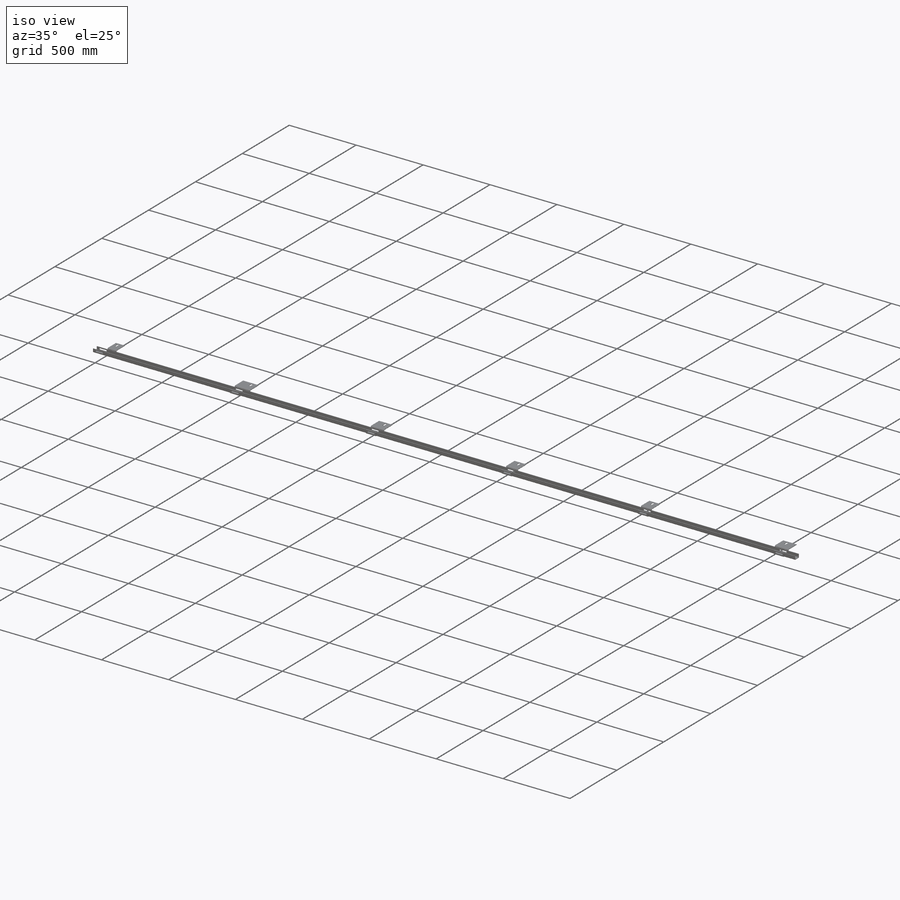
[diagram: iso view]
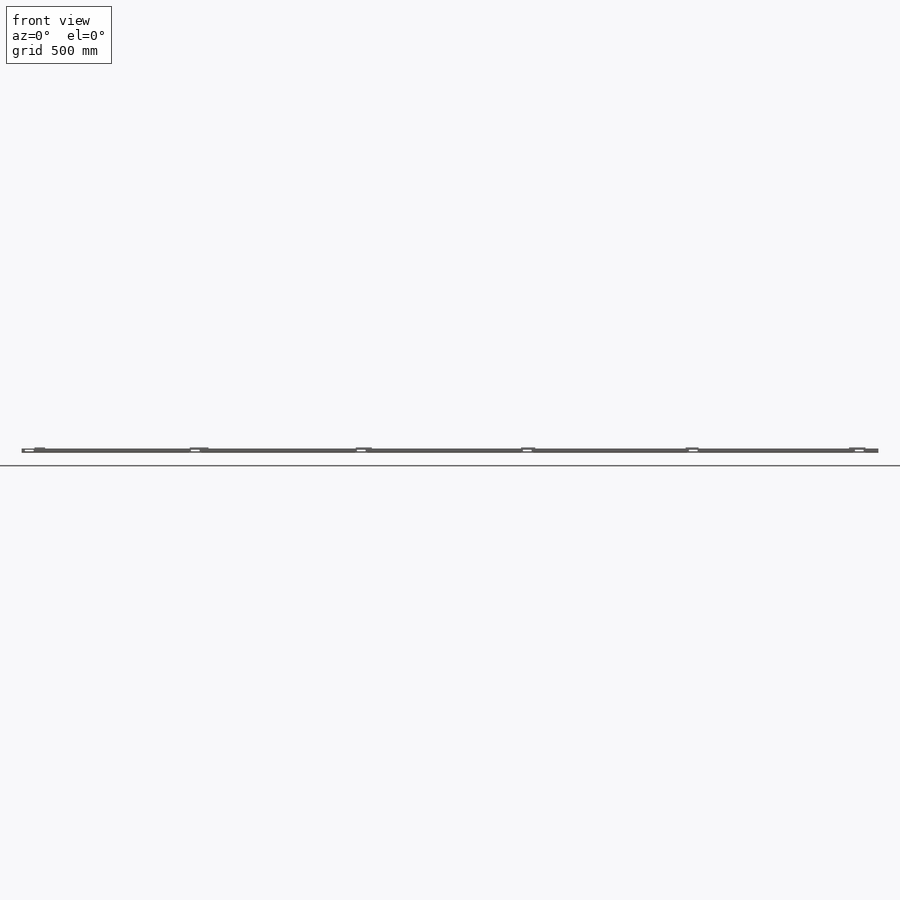
[diagram: front view]
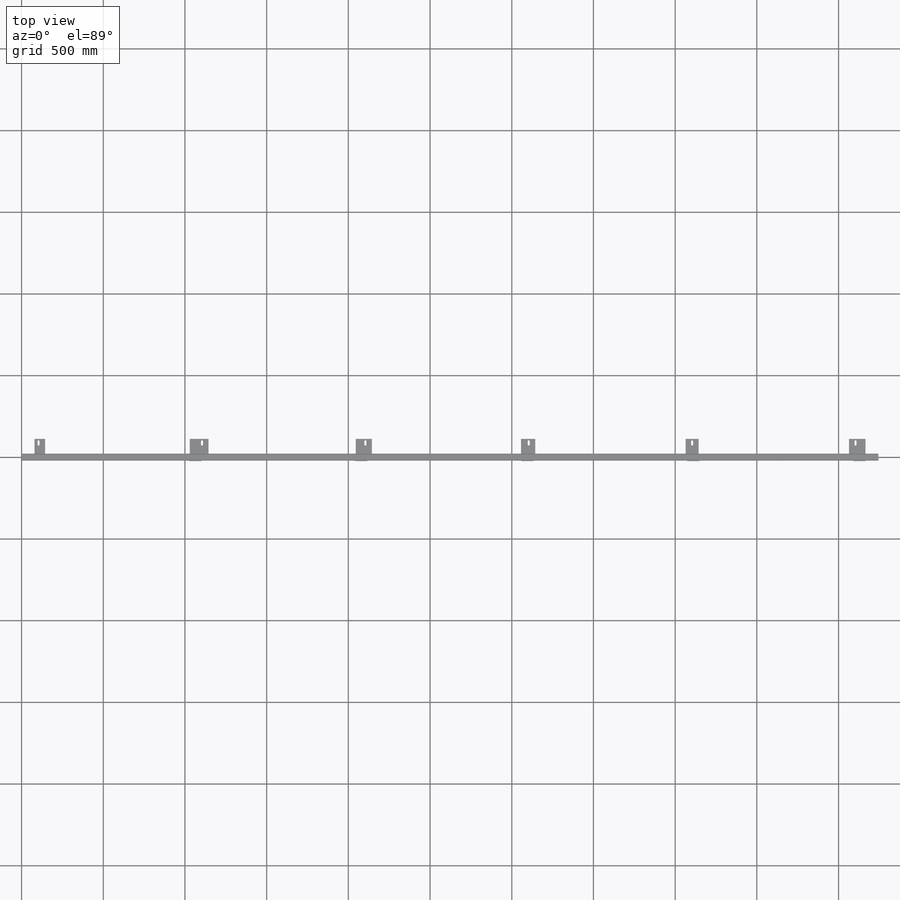
[diagram: top view]
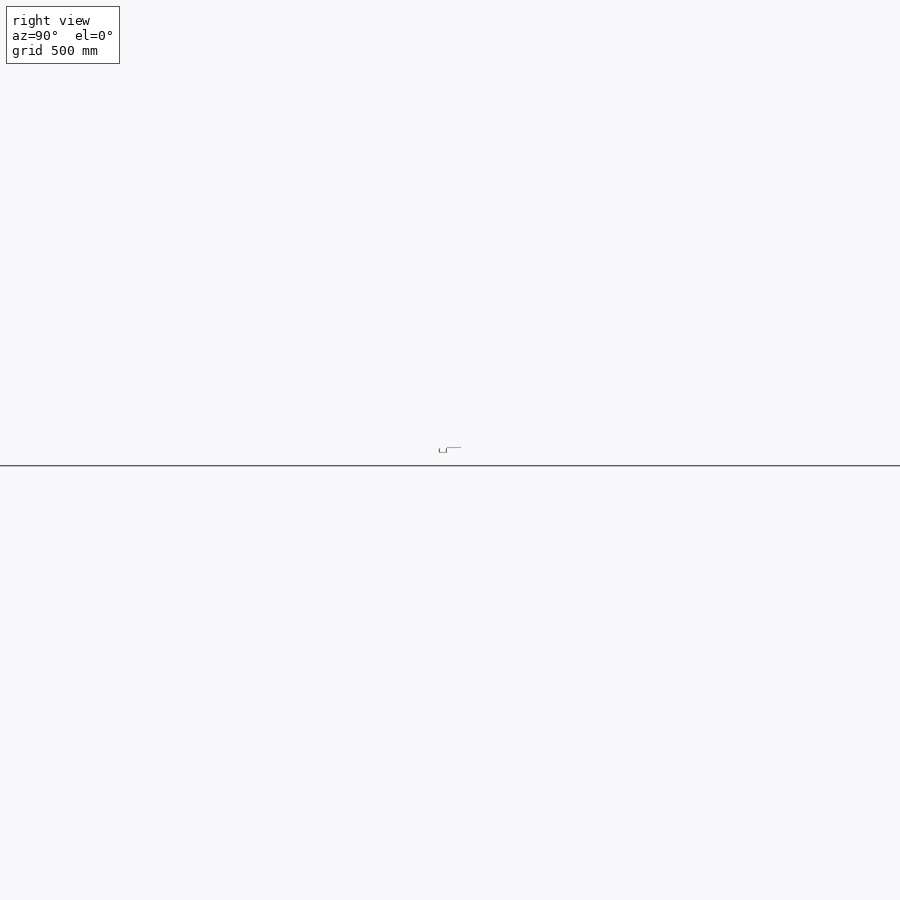
[diagram: right view]
SOLIDWORKS PART (.sldprt)
format: sldprt  version: not decoded by parser v0  size: 3,905,536 bytes
history: native  units: mm
features: sketch x130, sheet_metal_op x56, cut_extrude x13, extrude x8, mirror x2, pattern_linear x2, material x1 + 108 further entries (+26 scaffold rows collapsed; 10 parser-record rows omitted)
feature tree (356):
  scaffold x26  (default folders/planes/origin — collapsed)
  material  "1.0037 (S235JR)"
  "U guide lg 2244"
  "Patte de fixation allongé 3"
  "U guide de 2244 mm"
  "Patte de fixation 1"
  "Patte de fixation 2"
  "Patte de fixation 3"
  "Patte de fixation 4"
  "Patte de fixation 5"
  "Patte de fixation 6"
  "Plat de renfort"
  parser-record x10  (decoder bookkeeping rows leaked as tree rows — omitted from the tree; the rows remain in map.json)
  sketch  "Esquisse1"  dims[c1.D1=~6.334554mm c1.D2=~28.202983mm c2.D1=42.0mm c2.D2=3.0mm]
  extrude  "Boss.-Extru.1"  Depth=3000mm
  sketch  "Esquisse-Angle1"  dims[D1=0.0mm]
  sketch  "Esquisse-Plate1"  dims[D1=0.0mm]
  sketch  "Esquisse14"  dims[c1.D1=3.236mm c1.D4=90.0deg c1.D5=1.0 c1.D8=1.5mm c1.D9=1.5mm c2.D1=3.236mm c2.D2=500.0mm c2.D3=0.0mm c2.D6=0.5mm c2.D7=26.0mm]
  mirror  "Symétrie1"  Pli symétrique1=0
  sketch  "Esquisse49"  dims[D2=9.0mm D3=55.0mm D4=24.0mm D5=12.0mm D1=12.0mm]
  cut_extrude  "Enlèv. mat.-Extru.5"  [1 undecoded]
  sketch  "Esquisse59"  dims[c1.D1=~46.586115mm c1.D2=~3.145092mm c2.D1=30.528mm c2.D2=0.0mm c3.D1=30.528mm c3.D2=~53.722978mm c4.D1=2244.0mm]
  sheet_metal_op  "Tôle de base pliée1"
  extrude  "Tôle pliée sur arête2"  Depth=0 Pli d'arête3=0
  sketch  "Esquisse63"  dims[D1=3.236mm D2=500.0mm D3=0.0mm D6=10.0mm D7=26.0mm]
  mirror  "Symétrie2"  Pli symétrique3=0
  "Transformation de l'esquisse5"
  "Transformation de l'esquisse6"
  pattern_linear  "Répétition linéaire2"  Count1=6 Count2=1 Spacing1=1016mm Spacing2=50mm
  sketch  "Esquisse64"  dims[c1.D4=40.0mm c1.D3=34.0mm c1.D2=8.0mm c2.D3=34.0mm c2.D5=25.0mm c2.D1=104.0mm c2.D2=8.0mm c3.D3=29.5mm c3.D4=80.0mm]
  sheet_metal_op  "Tôle de base pliée2"
  extrude  "Tôle pliée sur arête3"  [1 undecoded]
  sketch  "Esquisse69"  dims[c1.Pli d'arête4=0.0 c1.D1=3.236mm c1.D4=90.0deg c1.D5=1.0 c1.D8=1.5mm c1.D9=1.5mm c2.D1=3.236mm c2.D2=500.0mm c2.D3=0.0mm c2.D6=10.0mm c2.D7=90.0mm]
  sketch  "Esquisse70"  dims[c1.D1=104.0mm c1.D2=12.0mm c1.D3=32.0mm c1.D4=25.0mm c1.D5=83.764mm c2.D1=40.0mm c2.D5=104.0mm c3.D1=104.0mm]
  cut_extrude  "Enlèv. mat.-Extru.6"  Depth=10mm
  sketch  "Esquisse72"  dims[c1.D1=1104.0mm c1.D2=75.0mm c1.D3=115.0mm c2.D1=1104.0mm c2.D2=75.0mm c2.D3=115.0mm c2.D4=8.0mm]
  sheet_metal_op  "Tôle de base pliée3"
  extrude  "Tôle pliée sur arête4"  [1 undecoded]
  sketch  "Esquisse77"  dims[c1.Pli d'arête5=0.0 c1.D1=3.236mm c1.D4=90.0deg c1.D5=1.0 c1.D8=1.5mm c1.D9=1.5mm c2.D1=3.236mm c2.D2=500.0mm c2.D3=0.0mm c2.D6=10.0mm c2.D7=90.0mm]
  sketch  "Esquisse78"
  cut_extrude  "Enlèv. mat.-Extru.7"  Depth=3mm
  sketch  "Esquisse79"  dims[c1.D1=1104.0mm c1.D2=12.0mm c1.D3=32.0mm c1.D4=25.0mm c2.D1=1104.0mm]
  cut_extrude  "Enlèv. mat.-Extru.8"  Depth=3mm
  sketch  "Esquisse80"  dims[c1.D1=2104.0mm c1.D2=43.5mm c1.D3=~44.187438mm c2.D2=59.0mm c2.D3=99.0mm c2.D1=2104.0mm c3.D2=55.0mm c3.D3=95.0mm c3.D4=8.0mm]
  sheet_metal_op  "Tôle de base pliée4"
  extrude  "Tôle pliée sur arête5"  [1 undecoded]
  sketch  "Esquisse85"  dims[c1.Pli d'arête6=0.0 c1.D1=3.236mm c1.D4=90.0deg c1.D5=1.0 c1.D8=1.5mm c1.D9=1.5mm c2.D1=3.236mm c2.D2=500.0mm c2.D3=0.0mm c2.D6=10.0mm c2.D7=90.0mm]
  sketch  "Esquisse86"
  cut_extrude  "Enlèv. mat.-Extru.9"  Depth=3mm
  sketch  "Esquisse87"  dims[c1.D1=2104.0mm c1.D2=12.0mm c1.D3=32.0mm c1.D4=25.0mm c2.D1=2104.0mm]
  cut_extrude  "Enlèv. mat.-Extru.10"  Depth=3mm
  sketch  "Esquisse88"  dims[c1.D1=3104.0mm c1.D2=47.5mm c1.D3=40.0mm c1.D4=8.0mm c2.D1=3104.0mm c2.D2=47.5mm c2.D3=40.0mm c2.D4=8.0mm]
  sheet_metal_op  "Tôle de base pliée6"
  extrude  "Tôle pliée sur arête7"  [1 undecoded]
  sketch  "Esquisse98"  dims[c1.Pli d'arête8=0.0 c1.D1=3.236mm c1.D4=90.0deg c1.D5=1.0 c1.D8=1.5mm c1.D9=1.5mm c2.D1=3.236mm c2.D2=500.0mm c2.D3=0.0mm c2.D6=10.0mm c2.D7=90.0mm]
  sketch  "Esquisse99"
  cut_extrude  "Enlèv. mat.-Extru.11"  Depth=3mm
  sketch  "Esquisse100"  dims[c1.D1=3104.0mm c1.D2=12.0mm c1.D3=32.0mm c1.D4=25.0mm c2.D1=3104.0mm]
  cut_extrude  "Enlèv. mat.-Extru.12"  Depth=3mm
  sketch  "Esquisse101"  dims[c1.D1=4104.0mm c1.D2=20.5mm c1.D3=40.0mm c1.D4=40.0mm c1.D5=34.0mm c2.D2=80.0mm c2.D6=8.0mm c2.D1=4104.0mm c3.D2=40.0mm c3.D3=40.0mm c4.D2=8.0mm]
  sheet_metal_op  "Tôle de base pliée7"
  sketch  "Esquisse104"
  cut_extrude  "Enlèv. mat.-Extru.13"  Depth=3mm
  extrude  "Tôle pliée sur arête8"  [1 undecoded]
  sketch  "Esquisse107"  dims[c1.Pli d'arête9=0.0 c1.D1=3.236mm c1.D4=90.0deg c1.D5=1.0 c1.D8=1.5mm c1.D9=1.5mm c2.D1=3.236mm c2.D2=500.0mm c2.D3=0.0mm c2.D6=10.0mm c2.D7=90.0mm]
  sketch  "Esquisse108"  dims[c1.D1=4104.0mm c1.D2=12.0mm c1.D3=32.0mm c1.D4=25.0mm c2.D1=4104.0mm]
  cut_extrude  "Enlèv. mat.-Extru.14"  Depth=3mm
  sketch  "Esquisse109"  dims[c1.D1=5104.0mm c1.D2=40.0mm c1.D3=61.0mm c1.D5=34.0mm c2.D1=5104.0mm c2.D2=40.0mm c2.D3=61.0mm c2.D4=8.0mm]
  sheet_metal_op  "Tôle de base pliée8"
  sketch  "Esquisse112"
  cut_extrude  "Enlèv. mat.-Extru.15"  Depth=3mm
  extrude  "Tôle pliée sur arête9"  [1 undecoded]
  sketch  "Esquisse115"  dims[c1.Pli d'arête10=0.0 c1.D1=3.236mm c1.D4=90.0deg c1.D5=1.0 c1.D8=1.5mm c1.D9=1.5mm c2.D1=3.236mm c2.D2=500.0mm c2.D3=0.0mm c2.D6=10.0mm c2.D7=90.0mm]
  sketch  "Esquisse116"  dims[c1.D1=5104.0mm c1.D2=12.0mm c1.D3=32.0mm c1.D4=25.0mm c2.D1=5104.0mm]
  cut_extrude  "Enlèv. mat.-Extru.16"  Depth=3mm
  sketch  "Esquisse117"  dims[c1.D2=75.0mm c1.D3=25.0mm c1.D4=1063.0mm c1.D5=37.5mm c2.D3=1001.5mm c2.D4=1076.5mm c3.D3=1001.5mm c3.D1=37.5mm c3.D2=37.5mm c4.D1=25.0mm c4.D2=25.0mm]
  sheet_metal_op  "Tôle de base pliée9"
  sketch  "Esquisse120"
  cut_extrude  "Enlèv. mat.-Extru.17"  Depth=3mm
  pattern_linear  "Répétition linéaire4"  Count1=5 Count2=1 Spacing1=1016mm Spacing2=10mm
  sketch  "Lignes de pliage3"
  sketch  "Cube de visualisation3"
  sheet_metal_op  "Tôlerie3"
  "Etat déplié3"
  sketch  "Lignes de pliage4"
  sketch  "Cube de visualisation4"
  "Transformation de l'esquisse2"
  sheet_metal_op  "Tôlerie4"
  "Etat déplié3"
  sketch  "Lignes de pliage4"
  sketch  "Cube de visualisation4"
  "Transformation de l'esquisse2"
  sheet_metal_op  "Tôlerie5"
  "Etat déplié3"
  sketch  "Lignes de pliage4"
  sketch  "Cube de visualisation4"
  "Transformation de l'esquisse2"
  sheet_metal_op  "Tôlerie134"
  "Etat déplié3"
  sketch  "Lignes de pliage4"
  sketch  "Cube de visualisation4"
  "Transformation de l'esquisse2"
  sheet_metal_op  "Tôlerie138"
  "Etat déplié142"
  sketch  "Lignes de pliage6"
  sketch  "Cube de visualisation6"
  "Transformation de l'esquisse4"
  sheet_metal_op  "Tôlerie139"
  "Etat déplié142"
  sketch  "Lignes de pliage6"
  sketch  "Cube de visualisation6"
  "Transformation de l'esquisse4"
  sheet_metal_op  "Tôlerie140"
  "Etat déplié3"
  sketch  "Lignes de pliage4"
  sketch  "Cube de visualisation4"
  "Transformation de l'esquisse2"
  sheet_metal_op  "Tôlerie141"
  "U de 2244 mm"
  sketch  "Lignes de pliage6"
  sketch  "Cube de visualisation6"
  "Transformation de l'esquisse4"
  sheet_metal_op  "Tôlerie142"
  "Etat déplié142"
  sketch  "Lignes de pliage7"
  sketch  "Cube de visualisation7"
  "Transformation de l'esquisse7"
  sheet_metal_op  "Tôlerie143"
  "Etat déplié142"
  sketch  "Lignes de pliage6"
  sketch  "Cube de visualisation6"
  "Transformation de l'esquisse4"
  sheet_metal_op  "Tôlerie144"
  "Etat déplié144"
  sketch  "Lignes de pliage8"
  sketch  "Cube de visualisation8"
  "Transformation de l'esquisse8"
  sheet_metal_op  "Tôlerie145"
  "Etat déplié144"
  sketch  "Lignes de pliage8"
  sketch  "Cube de visualisation8"
  "Transformation de l'esquisse8"
  sheet_metal_op  "Tôlerie146"
  "Etat déplié144"
  sketch  "Lignes de pliage8"
  sketch  "Cube de visualisation8"
  "Transformation de l'esquisse8"
  sheet_metal_op  "Tôlerie147"
  "Etat déplié147"
  sketch  "Lignes de pliage9"
  sketch  "Cube de visualisation9"
  "Transformation de l'esquisse9"
  sheet_metal_op  "Tôlerie148"
  "Etat déplié147"
  sketch  "Lignes de pliage9"
  sketch  "Cube de visualisation9"
  "Transformation de l'esquisse9"
  sheet_metal_op  "Tôlerie149"
  "Etat déplié147"
  sketch  "Lignes de pliage9"
  sketch  "Cube de visualisation9"
  "Transformation de l'esquisse9"
  sheet_metal_op  "Tôlerie150"
  "Etat déplié147"
  sketch  "Lignes de pliage9"
  sketch  "Cube de visualisation9"
  "Transformation de l'esquisse9"
  sheet_metal_op  "Tôlerie151"
  "Etat déplié151"
  sketch  "Lignes de pliage10"
  sketch  "Cube de visualisation10"
  "Transformation de l'esquisse10"
  sheet_metal_op  "Tôlerie152"
  "Etat déplié151"
  sketch  "Lignes de pliage10"
  sketch  "Cube de visualisation10"
  "Transformation de l'esquisse10"
  sheet_metal_op  "Tôlerie153"
  "Etat déplié151"
  sketch  "Lignes de pliage10"
  sketch  "Cube de visualisation10"
  "Transformation de l'esquisse10"
  sheet_metal_op  "Tôlerie154"
  "Etat déplié151"
  sketch  "Lignes de pliage10"
  sketch  "Cube de visualisation10"
  "Transformation de l'esquisse10"
  sheet_metal_op  "Tôlerie157"
  "Etat déplié157"
  sketch  "Lignes de pliage12"
  sketch  "Cube de visualisation12"
  "Transformation de l'esquisse12"
  sheet_metal_op  "Tôlerie158"
  "Etat déplié157"
  sketch  "Lignes de pliage12"
  sketch  "Cube de visualisation12"
  "Transformation de l'esquisse12"
  sheet_metal_op  "Tôlerie159"
  "Etat déplié157"
  sketch  "Lignes de pliage12"
  sketch  "Cube de visualisation12"
  "Transformation de l'esquisse12"
  sheet_metal_op  "Tôlerie160"
  "Etat déplié157"
  sketch  "Lignes de pliage12"
  sketch  "Cube de visualisation12"
  "Transformation de l'esquisse12"
  sheet_metal_op  "Tôlerie161"
  "Etat déplié161"
  sketch  "Lignes de pliage13"
  sketch  "Cube de visualisation13"
  "Transformation de l'esquisse13"
  sheet_metal_op  "Tôlerie162"
  "Etat déplié161"
  sketch  "Lignes de pliage13"
  sketch  "Cube de visualisation13"
  "Transformation de l'esquisse13"
  sheet_metal_op  "Tôlerie163"
  "Etat déplié161"
  sketch  "Lignes de pliage13"
  sketch  "Cube de visualisation13"
  "Transformation de l'esquisse13"
  sheet_metal_op  "Tôlerie164"
  "Etat déplié161"
  sketch  "Lignes de pliage13"
  sketch  "Cube de visualisation13"
  "Transformation de l'esquisse13"
  sheet_metal_op  "Tôlerie165"
  "Etat déplié165"
  sketch  "Lignes de pliage14"
  sketch  "Cube de visualisation14"
  "Transformation de l'esquisse14"
  sheet_metal_op  "Tôlerie166"
  "Etat déplié165"
  sketch  "Lignes de pliage14"
  sketch  "Cube de visualisation14"
  "Transformation de l'esquisse14"
  sheet_metal_op  "Tôlerie167"
  "Etat déplié165"
  sketch  "Lignes de pliage14"
  sketch  "Cube de visualisation14"
  "Transformation de l'esquisse14"
  sheet_metal_op  "Tôlerie168"
  "Etat déplié165"
  sketch  "Lignes de pliage14"
  sketch  "Cube de visualisation14"
  "Transformation de l'esquisse14"
  sheet_metal_op  "Tôlerie174"
  "Etat déplié174"
  sketch  "Lignes de pliage15"
  sketch  "Cube de visualisation15"
  "Transformation de l'esquisse15"
  sheet_metal_op  "Tôlerie175"
  "Etat déplié174"
  sketch  "Lignes de pliage15"
  sketch  "Cube de visualisation15"
  "Transformation de l'esquisse15"
  sheet_metal_op  "Tôlerie176"
  "Etat déplié176"
  sketch  "Lignes de pliage16"
  sketch  "Cube de visualisation16"
  "Transformation de l'esquisse16"
  sheet_metal_op  "Tôlerie177"
  "Etat déplié177"
  sketch  "Lignes de pliage17"
  sketch  "Cube de visualisation17"
  "Transformation de l'esquisse17"
  sheet_metal_op  "Tôlerie178"
  "Etat déplié178"
  sketch  "Lignes de pliage18"
  sketch  "Cube de visualisation18"
  "Transformation de l'esquisse18"
  sheet_metal_op  "Tôlerie179"
  "Etat déplié179"
  sketch  "Lignes de pliage19"
  sketch  "Cube de visualisation19"
  "Transformation de l'esquisse19"
  sheet_metal_op  "Tôlerie180"
  "Etat déplié3"
  sketch  "Lignes de pliage4"
  sketch  "Cube de visualisation4"
  "Transformation de l'esquisse2"
  sheet_metal_op  "Tôlerie181"
  "Etat déplié142"
  sketch  "Lignes de pliage6"
  sketch  "Cube de visualisation6"
  "Transformation de l'esquisse4"
  sheet_metal_op  "Tôlerie182"
  "Etat déplié144"
  sketch  "Lignes de pliage8"
  sketch  "Cube de visualisation8"
  "Transformation de l'esquisse8"
  sheet_metal_op  "Tôlerie183"
  "Etat déplié147"
  sketch  "Lignes de pliage9"
  sketch  "Cube de visualisation9"
  "Transformation de l'esquisse9"
  sheet_metal_op  "Tôlerie184"
  "Etat déplié151"
  sketch  "Lignes de pliage10"
  sketch  "Cube de visualisation10"
  "Transformation de l'esquisse10"
  sheet_metal_op  "Tôlerie185"
  "Etat déplié157"
  sketch  "Lignes de pliage12"
  sketch  "Cube de visualisation12"
  "Transformation de l'esquisse12"
  sheet_metal_op  "Tôlerie186"
  "Etat déplié161"
  sketch  "Lignes de pliage13"
  sketch  "Cube de visualisation13"
  "Transformation de l'esquisse13"
  sheet_metal_op  "Tôlerie187"
  "Etat déplié165"
  sketch  "Lignes de pliage14"
  sketch  "Cube de visualisation14"
  "Transformation de l'esquisse14"
  sheet_metal_op  "Tôlerie188"
  "Etat déplié174"
  sketch  "Lignes de pliage15"
  sketch  "Cube de visualisation15"
  "Transformation de l'esquisse15"
decode coverage: 44 of 211 modeling features carry decoded parameters; 108 rows unclassified (native names shown)
note: ~ marks probable driven/reference dimensions
note: 7 parameter values undecoded
summary: no parameter record found for 7 features
note: suppression state not decoded; provenance and decode notes live in map.json
